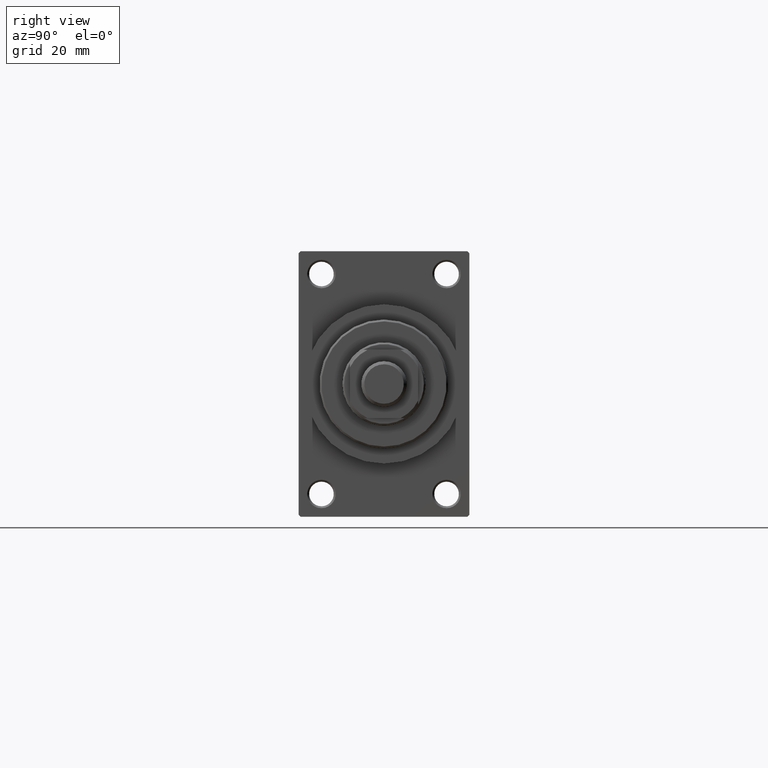
[diagram: clean part render]
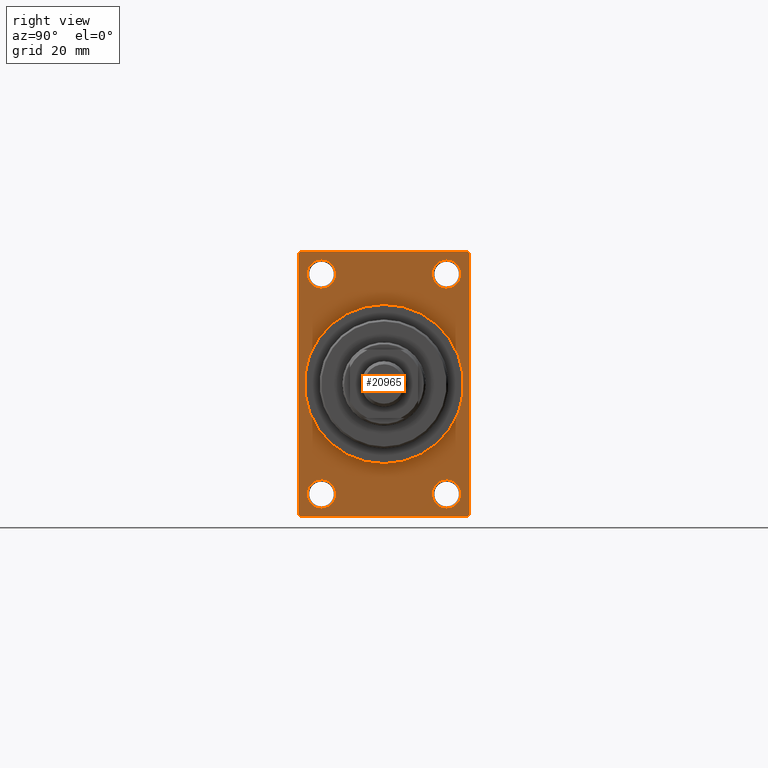
[diagram: same view with one face highlighted and labeled with its STEP entity id]
A machine part, right view. The second image highlights one B-rep face of the part: STEP entity #20965.
In plain terms, the highlighted planar face has unit normal (-1, 0, 0).
Its self-contained STEP definition (entity closure, byte-faithful):
#396 = VERTEX_POINT ( 'NONE', #2452 ) ;
#913 = EDGE_CURVE ( 'NONE', #42821, #36356, #46389, .T. ) ;
#952 = CARTESIAN_POINT ( 'NONE',  ( 113.0000000000000142, 22.49999999999999645, -34.50000000000000000 ) ) ;
#1108 = CARTESIAN_POINT ( 'NONE',  ( 113.0000000000000142, -22.50000000000000355, -34.49999999999997158 ) ) ;
#1188 = DIRECTION ( 'NONE',  ( -1.000000000000000000, -0.000000000000000000, -0.000000000000000000 ) ) ;
#1863 = LINE ( 'NONE', #24262, #20688 ) ;
#2452 = CARTESIAN_POINT ( 'NONE',  ( 113.0000000000000142, 21.99999999999999645, 35.00000000000000000 ) ) ;
#3152 = VECTOR ( 'NONE', #32519, 1000.000000000000114 ) ;
#3231 = CARTESIAN_POINT ( 'NONE',  ( 113.0000000000000142, 0.000000000000000000, 0.000000000000000000 ) ) ;
#3515 = AXIS2_PLACEMENT_3D ( 'NONE', #41423, #44806, #44094 ) ;
#3649 = ORIENTED_EDGE ( 'NONE', *, *, #43903, .T. ) ;
#4304 = CIRCLE ( 'NONE', #10454, 3.750000000000069278 ) ;
#4703 = LINE ( 'NONE', #11696, #33875 ) ;
#4727 = DIRECTION ( 'NONE',  ( 0.000000000000000000, 0.7071067811865376918, -0.7071067811865574537 ) ) ;
#5255 = EDGE_CURVE ( 'NONE', #21158, #38319, #47315, .T. ) ;
#5732 = EDGE_CURVE ( 'NONE', #17020, #28266, #17368, .T. ) ;
#6121 = CARTESIAN_POINT ( 'NONE',  ( 113.0000000000000142, -16.50000000000000000, 32.75000000000007816 ) ) ;
#6269 = FACE_OUTER_BOUND ( 'NONE', #43929, .T. ) ;
#6337 = CARTESIAN_POINT ( 'NONE',  ( 113.0000000000000142, -16.50000000000000000, -28.99999999999999289 ) ) ;
#6670 = CARTESIAN_POINT ( 'NONE',  ( 113.0000000000000142, -16.50000000000000000, 25.24999999999993960 ) ) ;
#7214 = EDGE_CURVE ( 'NONE', #25539, #29792, #36730, .T. ) ;
#8145 = VERTEX_POINT ( 'NONE', #29301 ) ;
#8241 = VERTEX_POINT ( 'NONE', #1108 ) ;
#9164 = DIRECTION ( 'NONE',  ( -1.000000000000000000, 0.000000000000000000, -0.000000000000000000 ) ) ;
#9242 = EDGE_CURVE ( 'NONE', #12305, #8241, #40556, .T. ) ;
#9261 = ORIENTED_EDGE ( 'NONE', *, *, #39465, .T. ) ;
#9717 = DIRECTION ( 'NONE',  ( -1.000000000000000000, -0.000000000000000000, -0.000000000000000000 ) ) ;
#9731 = CARTESIAN_POINT ( 'NONE',  ( 113.0000000000000142, -16.50000000000000000, -25.24999999999992184 ) ) ;
#10116 = FACE_BOUND ( 'NONE', #34313, .T. ) ;
#10454 = AXIS2_PLACEMENT_3D ( 'NONE', #13340, #16725, #24414 ) ;
#10971 = DIRECTION ( 'NONE',  ( 1.000000000000000000, 0.000000000000000000, 0.000000000000000000 ) ) ;
#11093 = DIRECTION ( 'NONE',  ( -0.000000000000000000, 0.7071067811865474617, 0.7071067811865474617 ) ) ;
#11319 = CARTESIAN_POINT ( 'NONE',  ( 113.0000000000000142, 16.50000000000000000, -28.99999999999999289 ) ) ;
#11696 = CARTESIAN_POINT ( 'NONE',  ( 113.0000000000000142, 21.99999999999999645, 35.00000000000000000 ) ) ;
#11952 = CARTESIAN_POINT ( 'NONE',  ( 113.0000000000000142, -21.99999999999998934, -35.00000000000000000 ) ) ;
#12042 = DIRECTION ( 'NONE',  ( 0.000000000000000000, 0.000000000000000000, 1.000000000000000000 ) ) ;
#12302 = CARTESIAN_POINT ( 'NONE',  ( 113.0000000000000142, 16.50000000000000000, -32.75000000000007105 ) ) ;
#12305 = VERTEX_POINT ( 'NONE', #18243 ) ;
#12619 = AXIS2_PLACEMENT_3D ( 'NONE', #11319, #25993, #25031 ) ;
#12638 = VERTEX_POINT ( 'NONE', #17825 ) ;
#12718 = DIRECTION ( 'NONE',  ( 0.000000000000000000, -1.000000000000000000, 0.000000000000000000 ) ) ;
#12726 = AXIS2_PLACEMENT_3D ( 'NONE', #15183, #15427, #29853 ) ;
#12747 = CARTESIAN_POINT ( 'NONE',  ( 113.0000000000000142, 16.50000000000000000, 29.00000000000000355 ) ) ;
#13142 = DIRECTION ( 'NONE',  ( 0.000000000000000000, 0.000000000000000000, -1.000000000000000000 ) ) ;
#13340 = CARTESIAN_POINT ( 'NONE',  ( 113.0000000000000142, -16.50000000000000000, 29.00000000000000711 ) ) ;
#13498 = DIRECTION ( 'NONE',  ( -0.000000000000000000, 0.000000000000000000, 1.000000000000000000 ) ) ;
#14229 = VECTOR ( 'NONE', #40815, 1000.000000000000000 ) ;
#14383 = CARTESIAN_POINT ( 'NONE',  ( 113.0000000000000142, 16.50000000000000000, 25.24999999999993250 ) ) ;
#14617 = AXIS2_PLACEMENT_3D ( 'NONE', #15145, #26679, #15390 ) ;
#14894 = LINE ( 'NONE', #15135, #24239 ) ;
#15006 = ORIENTED_EDGE ( 'NONE', *, *, #7214, .F. ) ;
#15135 = CARTESIAN_POINT ( 'NONE',  ( 113.0000000000000142, 22.49999999999999645, -35.00000000000000000 ) ) ;
#15145 = CARTESIAN_POINT ( 'NONE',  ( 113.0000000000000142, -16.50000000000000000, -28.99999999999999289 ) ) ;
#15183 = CARTESIAN_POINT ( 'NONE',  ( 113.0000000000000142, -16.50000000000000000, 29.00000000000000711 ) ) ;
#15306 = AXIS2_PLACEMENT_3D ( 'NONE', #3231, #42481, #13142 ) ;
#15390 = DIRECTION ( 'NONE',  ( 0.000000000000000000, 0.000000000000000000, 1.000000000000000000 ) ) ;
#15427 = DIRECTION ( 'NONE',  ( -1.000000000000000000, -0.000000000000000000, -0.000000000000000000 ) ) ;
#15562 = DIRECTION ( 'NONE',  ( 0.000000000000000000, 0.000000000000000000, 1.000000000000000000 ) ) ;
#15801 = DIRECTION ( 'NONE',  ( -1.000000000000000000, -0.000000000000000000, -0.000000000000000000 ) ) ;
#15946 = CARTESIAN_POINT ( 'NONE',  ( 113.0000000000000142, 22.49999999999999645, -34.50000000000000000 ) ) ;
#16725 = DIRECTION ( 'NONE',  ( -1.000000000000000000, -0.000000000000000000, -0.000000000000000000 ) ) ;
#16816 = CIRCLE ( 'NONE', #14617, 3.750000000000076383 ) ;
#17020 = VERTEX_POINT ( 'NONE', #6670 ) ;
#17318 = EDGE_CURVE ( 'NONE', #28398, #8145, #18396, .T. ) ;
#17360 = ORIENTED_EDGE ( 'NONE', *, *, #45189, .T. ) ;
#17368 = CIRCLE ( 'NONE', #12726, 3.750000000000069278 ) ;
#17442 = ORIENTED_EDGE ( 'NONE', *, *, #9242, .T. ) ;
#17764 = EDGE_CURVE ( 'NONE', #396, #26940, #1863, .T. ) ;
#17825 = CARTESIAN_POINT ( 'NONE',  ( 113.0000000000000142, -16.50000000000000000, -32.75000000000007105 ) ) ;
#18071 = ORIENTED_EDGE ( 'NONE', *, *, #20473, .T. ) ;
#18243 = CARTESIAN_POINT ( 'NONE',  ( 113.0000000000000142, -22.50000000000000355, 34.50000000000000000 ) ) ;
#18294 = AXIS2_PLACEMENT_3D ( 'NONE', #25416, #10971, #32620 ) ;
#18396 = CIRCLE ( 'NONE', #15306, 21.00000000000000000 ) ;
#19266 = LINE ( 'NONE', #952, #32327 ) ;
#19299 = EDGE_CURVE ( 'NONE', #28198, #12638, #16816, .T. ) ;
#19400 = CARTESIAN_POINT ( 'NONE',  ( 113.0000000000000142, 16.50000000000000000, -28.99999999999999289 ) ) ;
#19560 = ORIENTED_EDGE ( 'NONE', *, *, #19299, .T. ) ;
#20473 = EDGE_CURVE ( 'NONE', #8241, #32395, #29296, .T. ) ;
#20687 = ORIENTED_EDGE ( 'NONE', *, *, #22006, .T. ) ;
#20688 = VECTOR ( 'NONE', #12718, 1000.000000000000000 ) ;
#20965 = ADVANCED_FACE ( 'NONE', ( #27456, #24325, #10116, #42127, #24794, #6269 ), #38993, .F. ) ;
#21032 = EDGE_CURVE ( 'NONE', #36356, #42821, #33364, .T. ) ;
#21111 = CIRCLE ( 'NONE', #31856, 3.750000000000072831 ) ;
#21158 = VERTEX_POINT ( 'NONE', #14383 ) ;
#21381 = CARTESIAN_POINT ( 'NONE',  ( 113.0000000000000142, 21.99999999999999645, -35.00000000000000000 ) ) ;
#21556 = CARTESIAN_POINT ( 'NONE',  ( 113.0000000000000142, -22.50000000000000355, 35.00000000000000000 ) ) ;
#22006 = EDGE_CURVE ( 'NONE', #38319, #21158, #21111, .T. ) ;
#22101 = ORIENTED_EDGE ( 'NONE', *, *, #5255, .T. ) ;
#22288 = ORIENTED_EDGE ( 'NONE', *, *, #21032, .T. ) ;
#22347 = AXIS2_PLACEMENT_3D ( 'NONE', #6337, #9717, #39523 ) ;
#22525 = CARTESIAN_POINT ( 'NONE',  ( 113.0000000000000142, 22.49999999999999645, 35.00000000000000000 ) ) ;
#23078 = EDGE_CURVE ( 'NONE', #29822, #32395, #14894, .T. ) ;
#24110 = CARTESIAN_POINT ( 'NONE',  ( 113.0000000000000142, 0.000000000000000000, 21.00000000000000000 ) ) ;
#24239 = VECTOR ( 'NONE', #29575, 1000.000000000000000 ) ;
#24262 = CARTESIAN_POINT ( 'NONE',  ( 113.0000000000000142, 22.49999999999999645, 35.00000000000000000 ) ) ;
#24325 = FACE_BOUND ( 'NONE', #27131, .T. ) ;
#24414 = DIRECTION ( 'NONE',  ( 0.000000000000000000, 0.000000000000000000, 1.000000000000000000 ) ) ;
#24439 = CIRCLE ( 'NONE', #18294, 21.00000000000000000 ) ;
#24794 = FACE_BOUND ( 'NONE', #27975, .T. ) ;
#25031 = DIRECTION ( 'NONE',  ( 0.000000000000000000, 0.000000000000000000, 1.000000000000000000 ) ) ;
#25363 = EDGE_LOOP ( 'NONE', ( #26769, #28244 ) ) ;
#25416 = CARTESIAN_POINT ( 'NONE',  ( 113.0000000000000142, 0.000000000000000000, 0.000000000000000000 ) ) ;
#25539 = VERTEX_POINT ( 'NONE', #25565 ) ;
#25565 = CARTESIAN_POINT ( 'NONE',  ( 113.0000000000000142, 22.49999999999999645, 34.50000000000000000 ) ) ;
#25993 = DIRECTION ( 'NONE',  ( -1.000000000000000000, -0.000000000000000000, -0.000000000000000000 ) ) ;
#26601 = DIRECTION ( 'NONE',  ( 0.000000000000000000, -0.7071067811865474617, 0.7071067811865474617 ) ) ;
#26679 = DIRECTION ( 'NONE',  ( -1.000000000000000000, -0.000000000000000000, -0.000000000000000000 ) ) ;
#26769 = ORIENTED_EDGE ( 'NONE', *, *, #5732, .T. ) ;
#26940 = VERTEX_POINT ( 'NONE', #39329 ) ;
#26996 = CARTESIAN_POINT ( 'NONE',  ( 113.0000000000000142, 16.50000000000000000, 32.75000000000007816 ) ) ;
#27131 = EDGE_LOOP ( 'NONE', ( #9261, #19560 ) ) ;
#27456 = FACE_BOUND ( 'NONE', #25363, .T. ) ;
#27620 = CARTESIAN_POINT ( 'NONE',  ( 113.0000000000000142, -21.99999999999997513, -35.00000000000000000 ) ) ;
#27974 = VECTOR ( 'NONE', #4727, 999.9999999999998863 ) ;
#27975 = EDGE_LOOP ( 'NONE', ( #47101, #41081 ) ) ;
#28198 = VERTEX_POINT ( 'NONE', #9731 ) ;
#28243 = EDGE_CURVE ( 'NONE', #28266, #17020, #4304, .T. ) ;
#28244 = ORIENTED_EDGE ( 'NONE', *, *, #28243, .T. ) ;
#28266 = VERTEX_POINT ( 'NONE', #6121 ) ;
#28398 = VERTEX_POINT ( 'NONE', #24110 ) ;
#29296 = LINE ( 'NONE', #11952, #27974 ) ;
#29301 = CARTESIAN_POINT ( 'NONE',  ( 113.0000000000000142, 2.571758278209441661E-15, -21.00000000000000000 ) ) ;
#29575 = DIRECTION ( 'NONE',  ( 0.000000000000000000, -1.000000000000000000, 0.000000000000000000 ) ) ;
#29792 = VERTEX_POINT ( 'NONE', #15946 ) ;
#29822 = VERTEX_POINT ( 'NONE', #21381 ) ;
#29853 = DIRECTION ( 'NONE',  ( 0.000000000000000000, 0.000000000000000000, 1.000000000000000000 ) ) ;
#31151 = ORIENTED_EDGE ( 'NONE', *, *, #23078, .F. ) ;
#31856 = AXIS2_PLACEMENT_3D ( 'NONE', #12747, #1188, #12042 ) ;
#32327 = VECTOR ( 'NONE', #11093, 1000.000000000000114 ) ;
#32395 = VERTEX_POINT ( 'NONE', #27620 ) ;
#32519 = DIRECTION ( 'NONE',  ( -0.000000000000000000, -0.7071067811865474617, -0.7071067811865474617 ) ) ;
#32579 = AXIS2_PLACEMENT_3D ( 'NONE', #46452, #9164, #13498 ) ;
#32620 = DIRECTION ( 'NONE',  ( 0.000000000000000000, 0.000000000000000000, -1.000000000000000000 ) ) ;
#33094 = CIRCLE ( 'NONE', #22347, 3.750000000000076383 ) ;
#33364 = CIRCLE ( 'NONE', #12619, 3.750000000000076383 ) ;
#33875 = VECTOR ( 'NONE', #26601, 1000.000000000000114 ) ;
#34014 = EDGE_CURVE ( 'NONE', #8145, #28398, #24439, .T. ) ;
#34313 = EDGE_LOOP ( 'NONE', ( #22288, #42798 ) ) ;
#36356 = VERTEX_POINT ( 'NONE', #12302 ) ;
#36361 = LINE ( 'NONE', #40217, #3152 ) ;
#36730 = LINE ( 'NONE', #22525, #14229 ) ;
#38319 = VERTEX_POINT ( 'NONE', #26996 ) ;
#38993 = PLANE ( 'NONE',  #32579 ) ;
#39329 = CARTESIAN_POINT ( 'NONE',  ( 113.0000000000000142, -21.99999999999998934, 35.00000000000000000 ) ) ;
#39465 = EDGE_CURVE ( 'NONE', #12638, #28198, #33094, .T. ) ;
#39523 = DIRECTION ( 'NONE',  ( 0.000000000000000000, 0.000000000000000000, 1.000000000000000000 ) ) ;
#40217 = CARTESIAN_POINT ( 'NONE',  ( 113.0000000000000142, -22.50000000000000355, 34.50000000000000000 ) ) ;
#40520 = ORIENTED_EDGE ( 'NONE', *, *, #40525, .T. ) ;
#40525 = EDGE_CURVE ( 'NONE', #29822, #29792, #19266, .T. ) ;
#40556 = LINE ( 'NONE', #21556, #41157 ) ;
#40815 = DIRECTION ( 'NONE',  ( 0.000000000000000000, 0.000000000000000000, -1.000000000000000000 ) ) ;
#41081 = ORIENTED_EDGE ( 'NONE', *, *, #34014, .F. ) ;
#41157 = VECTOR ( 'NONE', #44167, 1000.000000000000000 ) ;
#41297 = EDGE_LOOP ( 'NONE', ( #22101, #20687 ) ) ;
#41423 = CARTESIAN_POINT ( 'NONE',  ( 113.0000000000000142, 16.50000000000000000, 29.00000000000000355 ) ) ;
#42127 = FACE_BOUND ( 'NONE', #41297, .T. ) ;
#42481 = DIRECTION ( 'NONE',  ( 1.000000000000000000, 0.000000000000000000, 0.000000000000000000 ) ) ;
#42798 = ORIENTED_EDGE ( 'NONE', *, *, #913, .T. ) ;
#42821 = VERTEX_POINT ( 'NONE', #44657 ) ;
#43903 = EDGE_CURVE ( 'NONE', #25539, #396, #4703, .T. ) ;
#43929 = EDGE_LOOP ( 'NONE', ( #17442, #18071, #31151, #40520, #15006, #3649, #45863, #17360 ) ) ;
#44094 = DIRECTION ( 'NONE',  ( 0.000000000000000000, 0.000000000000000000, 1.000000000000000000 ) ) ;
#44167 = DIRECTION ( 'NONE',  ( 0.000000000000000000, 0.000000000000000000, -1.000000000000000000 ) ) ;
#44657 = CARTESIAN_POINT ( 'NONE',  ( 113.0000000000000142, 16.50000000000000000, -25.24999999999992184 ) ) ;
#44806 = DIRECTION ( 'NONE',  ( -1.000000000000000000, -0.000000000000000000, -0.000000000000000000 ) ) ;
#44886 = AXIS2_PLACEMENT_3D ( 'NONE', #19400, #15801, #15562 ) ;
#45189 = EDGE_CURVE ( 'NONE', #26940, #12305, #36361, .T. ) ;
#45863 = ORIENTED_EDGE ( 'NONE', *, *, #17764, .T. ) ;
#46389 = CIRCLE ( 'NONE', #44886, 3.750000000000076383 ) ;
#46452 = CARTESIAN_POINT ( 'NONE',  ( 113.0000000000000142, 0.000000000000000000, 0.000000000000000000 ) ) ;
#47101 = ORIENTED_EDGE ( 'NONE', *, *, #17318, .F. ) ;
#47315 = CIRCLE ( 'NONE', #3515, 3.750000000000072831 ) ;